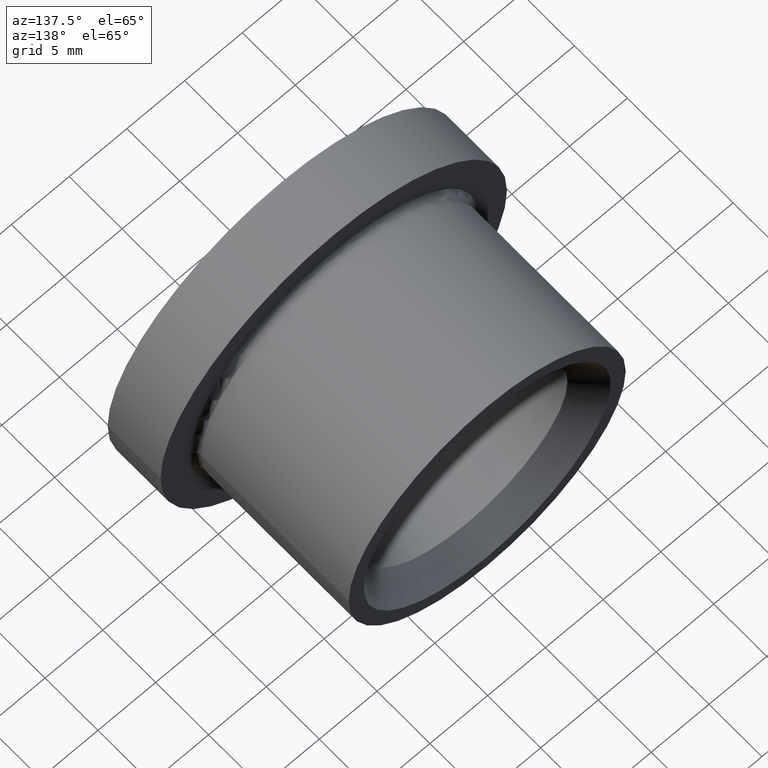
[diagram: clean part render]
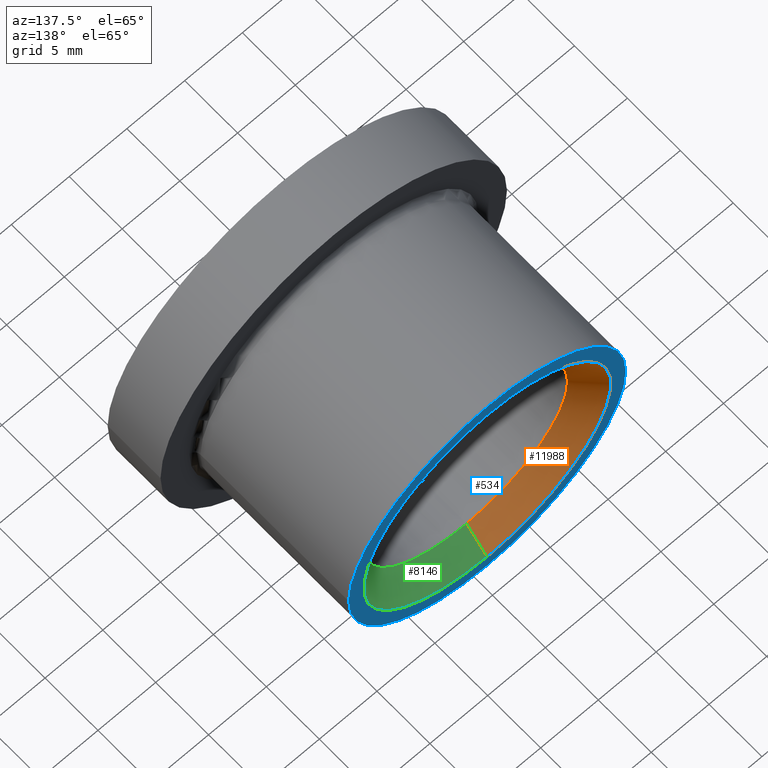
[diagram: same view with three faces highlighted in distinct colors, each labeled with its STEP entity id]
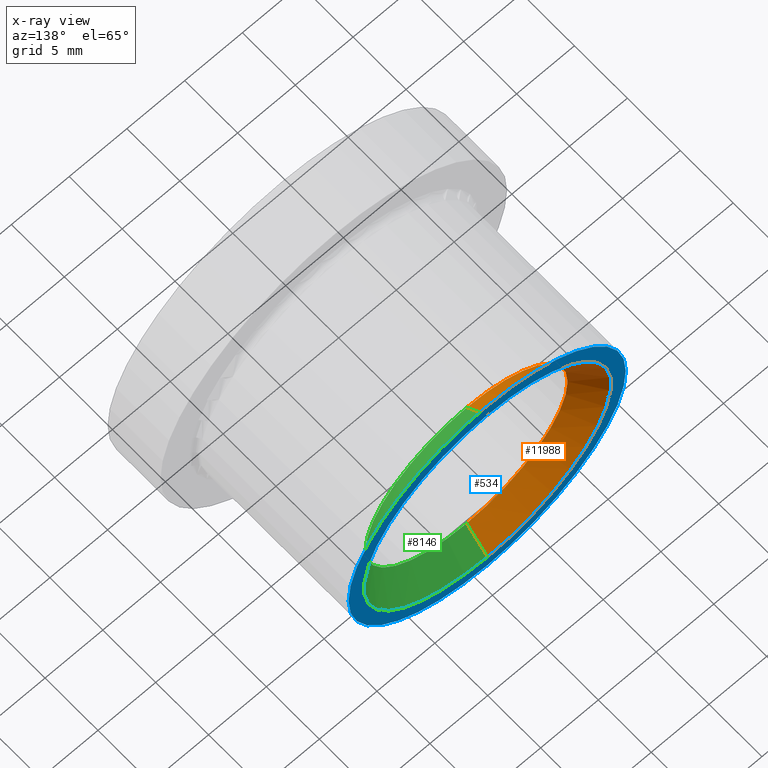
[diagram: x-ray of the same camera — body ghosted, the three highlighted faces saturated]
A machine part, auxiliary view with three faces highlighted in distinct colors.
The next image is the same camera in x-ray (body ghosted, the three faces saturated) — at least one of them is partly hidden behind the body in this view.
Their STEP definitions:

[orange] entity #11988 — the highlighted conical surface has half-angle 45 deg.
#59 = CARTESIAN_POINT ( 'NONE',  ( -6.123233995736770200E-016, 17.55000000000000800, 0.0000000000000000000 ) ) ;
#101 = ORIENTED_EDGE ( 'NONE', *, *, #5908, .T. ) ;
#449 = DIRECTION ( 'NONE',  ( -0.0000000000000000000, 1.000000000000000000, -0.0000000000000000000 ) ) ;
#1080 = DIRECTION ( 'NONE',  ( 0.0000000000000000000, 0.0000000000000000000, 1.000000000000000000 ) ) ;
#1395 = LINE ( 'NONE', #5735, #4834 ) ;
#1457 = DIRECTION ( 'NONE',  ( 0.0000000000000000000, 0.0000000000000000000, 1.000000000000000000 ) ) ;
#2119 = FACE_OUTER_BOUND ( 'NONE', #3218, .T. ) ;
#2592 = LINE ( 'NONE', #11750, #7577 ) ;
#3215 = VERTEX_POINT ( 'NONE', #8904 ) ;
#3218 = EDGE_LOOP ( 'NONE', ( #6257, #8296, #101, #11801 ) ) ;
#3637 = DIRECTION ( 'NONE',  ( 0.0000000000000000000, 0.7071067811865465700, 0.7071067811865484600 ) ) ;
#3891 = VERTEX_POINT ( 'NONE', #4701 ) ;
#4577 = VERTEX_POINT ( 'NONE', #5295 ) ;
#4701 = CARTESIAN_POINT ( 'NONE',  ( 6.980486755139908200E-016, 19.50000000000000400, -10.69999999999999900 ) ) ;
#4834 = VECTOR ( 'NONE', #3637, 1000.000000000000000 ) ;
#5295 = CARTESIAN_POINT ( 'NONE',  ( -6.123233995736770200E-016, 17.55000000000000800, 8.749999999999998200 ) ) ;
#5534 = EDGE_CURVE ( 'NONE', #4577, #3215, #1395, .T. ) ;
#5735 = CARTESIAN_POINT ( 'NONE',  ( -6.123233995736770200E-016, 19.50000000000000400, 10.69999999999999900 ) ) ;
#5908 = EDGE_CURVE ( 'NONE', #3891, #3215, #8157, .T. ) ;
#6136 = AXIS2_PLACEMENT_3D ( 'NONE', #6406, #449, #6493 ) ;
#6257 = ORIENTED_EDGE ( 'NONE', *, *, #11318, .F. ) ;
#6406 = CARTESIAN_POINT ( 'NONE',  ( -6.123233995736770200E-016, 19.50000000000000400, 0.0000000000000000000 ) ) ;
#6421 = CARTESIAN_POINT ( 'NONE',  ( 4.592425496802568100E-016, 17.55000000000000800, -8.749999999999998200 ) ) ;
#6493 = DIRECTION ( 'NONE',  ( 0.0000000000000000000, 0.0000000000000000000, 1.000000000000000000 ) ) ;
#6644 = VERTEX_POINT ( 'NONE', #6421 ) ;
#6654 = AXIS2_PLACEMENT_3D ( 'NONE', #59, #7026, #1080 ) ;
#7026 = DIRECTION ( 'NONE',  ( -0.0000000000000000000, 1.000000000000000000, -0.0000000000000000000 ) ) ;
#7577 = VECTOR ( 'NONE', #9784, 1000.000000000000000 ) ;
#7744 = CONICAL_SURFACE ( 'NONE', #6136, 10.69999999999999900, 0.7853981633974496100 ) ;
#8157 = CIRCLE ( 'NONE', #9968, 10.69999999999999900 ) ;
#8296 = ORIENTED_EDGE ( 'NONE', *, *, #9730, .T. ) ;
#8357 = DIRECTION ( 'NONE',  ( -0.0000000000000000000, 1.000000000000000000, -0.0000000000000000000 ) ) ;
#8487 = CARTESIAN_POINT ( 'NONE',  ( -6.123233995736770200E-016, 19.50000000000000400, 0.0000000000000000000 ) ) ;
#8904 = CARTESIAN_POINT ( 'NONE',  ( -6.123233995736770200E-016, 19.50000000000000400, 10.69999999999999900 ) ) ;
#9730 = EDGE_CURVE ( 'NONE', #6644, #3891, #2592, .T. ) ;
#9784 = DIRECTION ( 'NONE',  ( 8.659560562354944000E-017, 0.7071067811865465700, -0.7071067811865484600 ) ) ;
#9968 = AXIS2_PLACEMENT_3D ( 'NONE', #8487, #8357, #1457 ) ;
#10991 = CIRCLE ( 'NONE', #6654, 8.749999999999998200 ) ;
#11318 = EDGE_CURVE ( 'NONE', #6644, #4577, #10991, .T. ) ;
#11750 = CARTESIAN_POINT ( 'NONE',  ( 6.980486755139908200E-016, 19.50000000000000400, -10.69999999999999900 ) ) ;
#11801 = ORIENTED_EDGE ( 'NONE', *, *, #5534, .F. ) ;
#11988 = ADVANCED_FACE ( 'NONE', ( #2119 ), #7744, .F. ) ;

[blue] entity #534 — the highlighted planar face has unit normal (0, -1, 0).
#248 = DIRECTION ( 'NONE',  ( -1.000000000000000000, 0.0000000000000000000, 0.0000000000000000000 ) ) ;
#506 = CARTESIAN_POINT ( 'NONE',  ( -6.123233995736769200E-016, 19.50000000000000400, 0.0000000000000000000 ) ) ;
#534 = ADVANCED_FACE ( 'NONE', ( #6044, #9131 ), #7237, .F. ) ;
#634 = AXIS2_PLACEMENT_3D ( 'NONE', #3058, #9191, #11167 ) ;
#1134 = AXIS2_PLACEMENT_3D ( 'NONE', #506, #2571, #12497 ) ;
#1354 = VERTEX_POINT ( 'NONE', #8877 ) ;
#1457 = DIRECTION ( 'NONE',  ( 0.0000000000000000000, 0.0000000000000000000, 1.000000000000000000 ) ) ;
#1920 = VERTEX_POINT ( 'NONE', #12499 ) ;
#2239 = DIRECTION ( 'NONE',  ( -3.140119997813727100E-017, 1.000000000000000000, -0.0000000000000000000 ) ) ;
#2531 = ORIENTED_EDGE ( 'NONE', *, *, #6400, .F. ) ;
#2571 = DIRECTION ( 'NONE',  ( -3.140119997813727100E-017, 1.000000000000000000, -0.0000000000000000000 ) ) ;
#3028 = ORIENTED_EDGE ( 'NONE', *, *, #5908, .F. ) ;
#3058 = CARTESIAN_POINT ( 'NONE',  ( 12.00000000000000000, 19.50000000000000400, 0.0000000000000000000 ) ) ;
#3215 = VERTEX_POINT ( 'NONE', #8904 ) ;
#3697 = EDGE_CURVE ( 'NONE', #1920, #1354, #8504, .T. ) ;
#3891 = VERTEX_POINT ( 'NONE', #4701 ) ;
#4701 = CARTESIAN_POINT ( 'NONE',  ( 6.980486755139908200E-016, 19.50000000000000400, -10.69999999999999900 ) ) ;
#4751 = CIRCLE ( 'NONE', #9547, 10.69999999999999900 ) ;
#5400 = CARTESIAN_POINT ( 'NONE',  ( -6.123233995736769200E-016, 19.50000000000000400, 0.0000000000000000000 ) ) ;
#5657 = CARTESIAN_POINT ( 'NONE',  ( -6.123233995736770200E-016, 19.50000000000000400, 0.0000000000000000000 ) ) ;
#5908 = EDGE_CURVE ( 'NONE', #3891, #3215, #8157, .T. ) ;
#6044 = FACE_BOUND ( 'NONE', #7878, .T. ) ;
#6177 = ORIENTED_EDGE ( 'NONE', *, *, #9446, .T. ) ;
#6400 = EDGE_CURVE ( 'NONE', #3215, #3891, #4751, .T. ) ;
#7237 = PLANE ( 'NONE',  #634 ) ;
#7878 = EDGE_LOOP ( 'NONE', ( #2531, #3028 ) ) ;
#8007 = EDGE_LOOP ( 'NONE', ( #6177, #10802 ) ) ;
#8157 = CIRCLE ( 'NONE', #9968, 10.69999999999999900 ) ;
#8357 = DIRECTION ( 'NONE',  ( -0.0000000000000000000, 1.000000000000000000, -0.0000000000000000000 ) ) ;
#8487 = CARTESIAN_POINT ( 'NONE',  ( -6.123233995736770200E-016, 19.50000000000000400, 0.0000000000000000000 ) ) ;
#8504 = CIRCLE ( 'NONE', #10969, 12.00000000000000000 ) ;
#8678 = CIRCLE ( 'NONE', #1134, 12.00000000000000000 ) ;
#8877 = CARTESIAN_POINT ( 'NONE',  ( -12.00000000000000000, 19.50000000000000400, 0.0000000000000000000 ) ) ;
#8904 = CARTESIAN_POINT ( 'NONE',  ( -6.123233995736770200E-016, 19.50000000000000400, 10.69999999999999900 ) ) ;
#9131 = FACE_OUTER_BOUND ( 'NONE', #8007, .T. ) ;
#9191 = DIRECTION ( 'NONE',  ( 3.140119997813727100E-017, -1.000000000000000000, 0.0000000000000000000 ) ) ;
#9446 = EDGE_CURVE ( 'NONE', #1354, #1920, #8678, .T. ) ;
#9547 = AXIS2_PLACEMENT_3D ( 'NONE', #5657, #11746, #11619 ) ;
#9968 = AXIS2_PLACEMENT_3D ( 'NONE', #8487, #8357, #1457 ) ;
#10802 = ORIENTED_EDGE ( 'NONE', *, *, #3697, .T. ) ;
#10969 = AXIS2_PLACEMENT_3D ( 'NONE', #5400, #2239, #248 ) ;
#11167 = DIRECTION ( 'NONE',  ( 1.000000000000000000, 3.140119997813727100E-017, 0.0000000000000000000 ) ) ;
#11619 = DIRECTION ( 'NONE',  ( 0.0000000000000000000, 0.0000000000000000000, 1.000000000000000000 ) ) ;
#11746 = DIRECTION ( 'NONE',  ( -0.0000000000000000000, 1.000000000000000000, -0.0000000000000000000 ) ) ;
#12497 = DIRECTION ( 'NONE',  ( -1.000000000000000000, 0.0000000000000000000, 0.0000000000000000000 ) ) ;
#12499 = CARTESIAN_POINT ( 'NONE',  ( 12.00000000000000000, 19.50000000000000400, 1.469576158976823900E-015 ) ) ;

[green] entity #8146 — the highlighted conical surface has half-angle 45 deg.
#1395 = LINE ( 'NONE', #5735, #4834 ) ;
#1568 = AXIS2_PLACEMENT_3D ( 'NONE', #9753, #10721, #4710 ) ;
#2510 = EDGE_LOOP ( 'NONE', ( #12908, #2697, #12028, #3952 ) ) ;
#2592 = LINE ( 'NONE', #11750, #7577 ) ;
#2697 = ORIENTED_EDGE ( 'NONE', *, *, #8803, .F. ) ;
#3215 = VERTEX_POINT ( 'NONE', #8904 ) ;
#3302 = DIRECTION ( 'NONE',  ( 0.0000000000000000000, 0.0000000000000000000, 1.000000000000000000 ) ) ;
#3637 = DIRECTION ( 'NONE',  ( 0.0000000000000000000, 0.7071067811865465700, 0.7071067811865484600 ) ) ;
#3881 = AXIS2_PLACEMENT_3D ( 'NONE', #11146, #12308, #3302 ) ;
#3891 = VERTEX_POINT ( 'NONE', #4701 ) ;
#3952 = ORIENTED_EDGE ( 'NONE', *, *, #6400, .T. ) ;
#4577 = VERTEX_POINT ( 'NONE', #5295 ) ;
#4658 = CIRCLE ( 'NONE', #1568, 8.749999999999998200 ) ;
#4701 = CARTESIAN_POINT ( 'NONE',  ( 6.980486755139908200E-016, 19.50000000000000400, -10.69999999999999900 ) ) ;
#4710 = DIRECTION ( 'NONE',  ( 0.0000000000000000000, 0.0000000000000000000, 1.000000000000000000 ) ) ;
#4751 = CIRCLE ( 'NONE', #9547, 10.69999999999999900 ) ;
#4834 = VECTOR ( 'NONE', #3637, 1000.000000000000000 ) ;
#5295 = CARTESIAN_POINT ( 'NONE',  ( -6.123233995736770200E-016, 17.55000000000000800, 8.749999999999998200 ) ) ;
#5534 = EDGE_CURVE ( 'NONE', #4577, #3215, #1395, .T. ) ;
#5657 = CARTESIAN_POINT ( 'NONE',  ( -6.123233995736770200E-016, 19.50000000000000400, 0.0000000000000000000 ) ) ;
#5735 = CARTESIAN_POINT ( 'NONE',  ( -6.123233995736770200E-016, 19.50000000000000400, 10.69999999999999900 ) ) ;
#6400 = EDGE_CURVE ( 'NONE', #3215, #3891, #4751, .T. ) ;
#6421 = CARTESIAN_POINT ( 'NONE',  ( 4.592425496802568100E-016, 17.55000000000000800, -8.749999999999998200 ) ) ;
#6644 = VERTEX_POINT ( 'NONE', #6421 ) ;
#7577 = VECTOR ( 'NONE', #9784, 1000.000000000000000 ) ;
#8146 = ADVANCED_FACE ( 'NONE', ( #9139 ), #11986, .F. ) ;
#8803 = EDGE_CURVE ( 'NONE', #4577, #6644, #4658, .T. ) ;
#8904 = CARTESIAN_POINT ( 'NONE',  ( -6.123233995736770200E-016, 19.50000000000000400, 10.69999999999999900 ) ) ;
#9139 = FACE_OUTER_BOUND ( 'NONE', #2510, .T. ) ;
#9547 = AXIS2_PLACEMENT_3D ( 'NONE', #5657, #11746, #11619 ) ;
#9730 = EDGE_CURVE ( 'NONE', #6644, #3891, #2592, .T. ) ;
#9753 = CARTESIAN_POINT ( 'NONE',  ( -6.123233995736770200E-016, 17.55000000000000800, 0.0000000000000000000 ) ) ;
#9784 = DIRECTION ( 'NONE',  ( 8.659560562354944000E-017, 0.7071067811865465700, -0.7071067811865484600 ) ) ;
#10721 = DIRECTION ( 'NONE',  ( -0.0000000000000000000, 1.000000000000000000, -0.0000000000000000000 ) ) ;
#11146 = CARTESIAN_POINT ( 'NONE',  ( -6.123233995736770200E-016, 19.50000000000000400, 0.0000000000000000000 ) ) ;
#11619 = DIRECTION ( 'NONE',  ( 0.0000000000000000000, 0.0000000000000000000, 1.000000000000000000 ) ) ;
#11746 = DIRECTION ( 'NONE',  ( -0.0000000000000000000, 1.000000000000000000, -0.0000000000000000000 ) ) ;
#11750 = CARTESIAN_POINT ( 'NONE',  ( 6.980486755139908200E-016, 19.50000000000000400, -10.69999999999999900 ) ) ;
#11986 = CONICAL_SURFACE ( 'NONE', #3881, 10.69999999999999900, 0.7853981633974496100 ) ;
#12028 = ORIENTED_EDGE ( 'NONE', *, *, #5534, .T. ) ;
#12308 = DIRECTION ( 'NONE',  ( -0.0000000000000000000, 1.000000000000000000, -0.0000000000000000000 ) ) ;
#12908 = ORIENTED_EDGE ( 'NONE', *, *, #9730, .F. ) ;